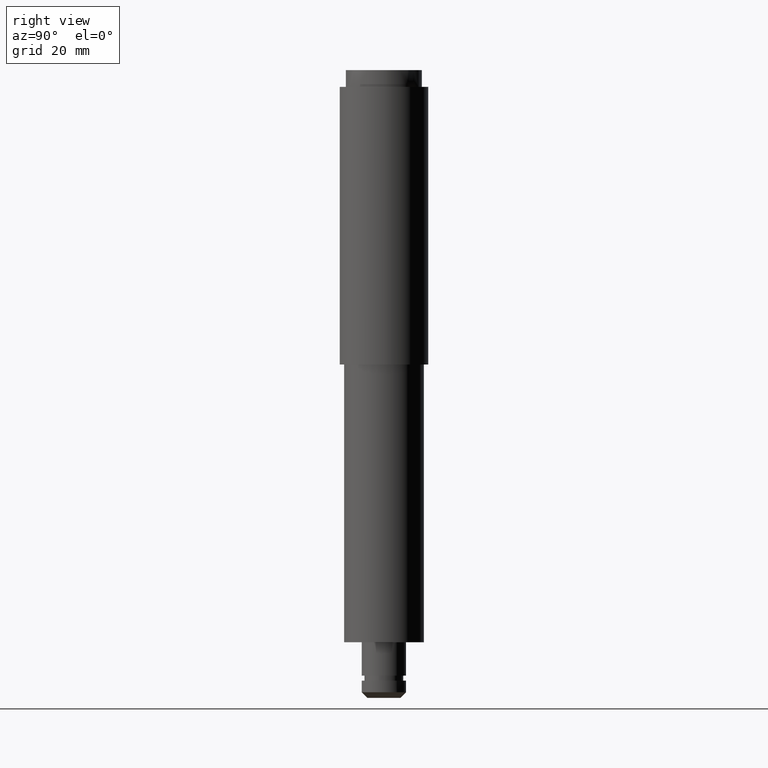
[diagram: clean part render]
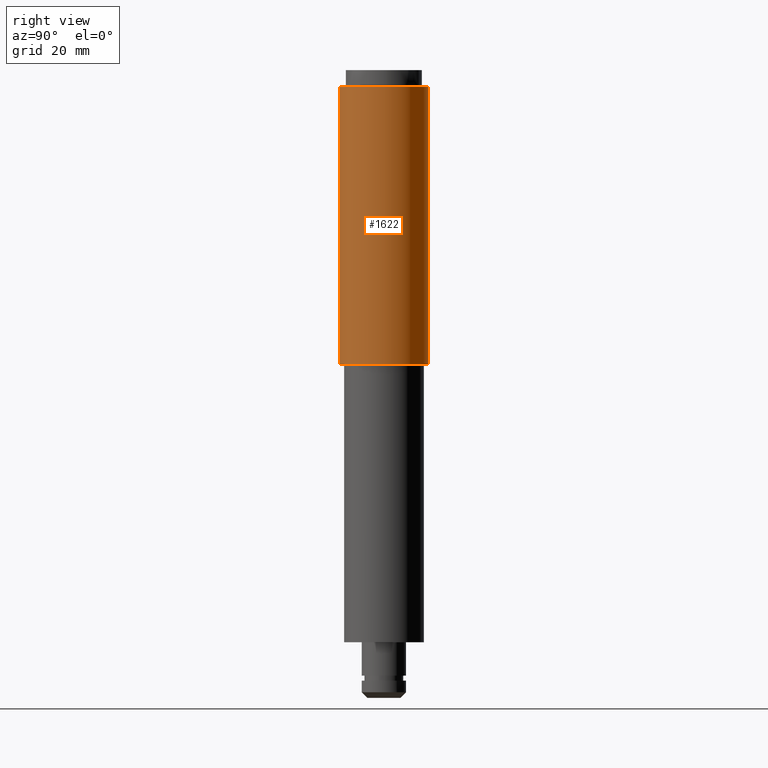
[diagram: same view with one face highlighted and labeled with its STEP entity id]
A machine part, right view. The second image highlights one B-rep face of the part: STEP entity #1622.
In plain terms, the highlighted face is a freeform B-spline surface patch.
Its self-contained STEP definition (entity closure, byte-faithful):
#1459=CARTESIAN_POINT('',(0.944273877348134,-7.944076210898157,60.0));
#1460=VERTEX_POINT('',#1459);
#1478=CARTESIAN_POINT('',(0.944273877348135,-7.944076210898157,110.0));
#1479=VERTEX_POINT('',#1478);
#1480=CARTESIAN_POINT('',(0.944273877348135,-7.944076210898157,110.0));
#1481=CARTESIAN_POINT('',(0.944273877348134,-7.944076210898157,60.0));
#1482=QUASI_UNIFORM_CURVE('',1,(#1480,#1481),.UNSPECIFIED.,.F.,.U.);
#1483=EDGE_CURVE('',#1479,#1460,#1482,.T.);
#1502=CARTESIAN_POINT('',(-0.488388316448705,7.985078387364543,110.0));
#1503=VERTEX_POINT('',#1502);
#1517=CARTESIAN_POINT('',(-0.488388316448705,7.985078387364543,60.0));
#1518=VERTEX_POINT('',#1517);
#1519=CARTESIAN_POINT('',(-0.488388316448705,7.985078387364543,110.0));
#1520=CARTESIAN_POINT('',(-0.488388316448705,7.985078387364543,60.0));
#1521=QUASI_UNIFORM_CURVE('',1,(#1519,#1520),.UNSPECIFIED.,.F.,.U.);
#1522=EDGE_CURVE('',#1503,#1518,#1521,.T.);
#1540=CARTESIAN_POINT('',(-0.488388316278799,7.985078387374934,111.250000000000000));
#1541=CARTESIAN_POINT('',(7.496690071096134,8.473466703653790,111.250000000000000));
#1542=CARTESIAN_POINT('',(7.985078387374990,0.488388316278856,111.250000000000000));
#1543=CARTESIAN_POINT('',(8.446289573860275,-7.052347926716008,111.250000000000000));
#1544=CARTESIAN_POINT('',(0.944273877254125,-7.944076210909330,111.250000000000060));
#1545=CARTESIAN_POINT('',(-0.488388316278799,7.985078387374934,58.718749999999993));
#1546=CARTESIAN_POINT('',(7.496690071096134,8.473466703653790,58.718750000000000));
#1547=CARTESIAN_POINT('',(7.985078387374990,0.488388316278856,58.718749999999993));
#1548=CARTESIAN_POINT('',(8.446289573860275,-7.052347926716008,58.718749999999993));
#1549=CARTESIAN_POINT('',(0.944273877254125,-7.944076210909330,58.718750000000000));
#1557=(BOUNDED_SURFACE()B_SPLINE_SURFACE(2,1,((#1540,#1545),(#1541,#1546),(#1542,#1547),(#1543,#1548),(#1544,#1549)),.UNSPECIFIED.,.F.,.F.,.U.)B_SPLINE_SURFACE_WITH_KNOTS((3,2,3),(2,2),(0.0,13.254833995939039,25.979474632040510),(0.0,52.531250000000028),.UNSPECIFIED.)GEOMETRIC_REPRESENTATION_ITEM()RATIONAL_B_SPLINE_SURFACE(((1.0,1.0),(0.707106781186548,0.707106781186548),(1.0,1.0),(0.718822509939086,0.718822509939086),(0.977505800795127,0.977505800795127)))REPRESENTATION_ITEM('')SURFACE());
#1558=CARTESIAN_POINT('',(8.000000000000057,0.0,60.0));
#1559=VERTEX_POINT('',#1558);
#1560=CARTESIAN_POINT('',(8.000000000000057,0.0,60.0));
#1561=CARTESIAN_POINT('',(8.000000000000057,-7.105396207441585,59.999999999999993));
#1562=CARTESIAN_POINT('',(0.944273877348134,-7.944076210898157,60.0));
#1570=(BOUNDED_CURVE()B_SPLINE_CURVE(2,(#1560,#1561,#1562),.UNSPECIFIED.,.F.,.U.)B_SPLINE_CURVE_WITH_KNOTS((3,3),(0.0,0.229562473511644),.UNSPECIFIED.)CURVE()GEOMETRIC_REPRESENTATION_ITEM()RATIONAL_B_SPLINE_CURVE((1.0,0.731050832857586,0.956026754180046))REPRESENTATION_ITEM(''));
#1571=EDGE_CURVE('',#1559,#1460,#1570,.T.);
#1572=ORIENTED_EDGE('',*,*,#1571,.F.);
#1573=CARTESIAN_POINT('',(-0.488388316448705,7.985078387364542,60.0));
#1574=CARTESIAN_POINT('',(-0.244422106559037,8.0,60.000000000000007));
#1575=CARTESIAN_POINT('',(5.684342E-014,8.0,60.0));
#1576=CARTESIAN_POINT('',(8.000000000000059,8.0,60.0));
#1577=CARTESIAN_POINT('',(8.000000000000057,0.0,60.0));
#1585=(BOUNDED_CURVE()B_SPLINE_CURVE(2,(#1573,#1574,#1575,#1576,#1577),.UNSPECIFIED.,.F.,.U.)B_SPLINE_CURVE_WITH_KNOTS((3,2,3),(0.739332962234625,0.750000000000000,1.0),.UNSPECIFIED.)CURVE()GEOMETRIC_REPRESENTATION_ITEM()RATIONAL_B_SPLINE_CURVE((0.976072041657465,0.987502787894779,1.0,0.707106781186548,1.0))REPRESENTATION_ITEM(''));
#1586=EDGE_CURVE('',#1518,#1559,#1585,.T.);
#1587=ORIENTED_EDGE('',*,*,#1586,.F.);
#1588=ORIENTED_EDGE('',*,*,#1522,.F.);
#1589=CARTESIAN_POINT('',(8.000000000000057,0.0,110.0));
#1590=VERTEX_POINT('',#1589);
#1591=CARTESIAN_POINT('',(-0.488388316448705,7.985078387364542,110.0));
#1592=CARTESIAN_POINT('',(-0.244422106559037,8.0,110.0));
#1593=CARTESIAN_POINT('',(5.684342E-014,8.0,110.0));
#1594=CARTESIAN_POINT('',(8.000000000000059,8.0,110.0));
#1595=CARTESIAN_POINT('',(8.000000000000057,0.0,110.0));
#1603=(BOUNDED_CURVE()B_SPLINE_CURVE(2,(#1591,#1592,#1593,#1594,#1595),.UNSPECIFIED.,.F.,.U.)B_SPLINE_CURVE_WITH_KNOTS((3,2,3),(0.739332962234625,0.750000000000000,1.0),.UNSPECIFIED.)CURVE()GEOMETRIC_REPRESENTATION_ITEM()RATIONAL_B_SPLINE_CURVE((0.976072041657465,0.987502787894779,1.0,0.707106781186548,1.0))REPRESENTATION_ITEM(''));
#1604=EDGE_CURVE('',#1503,#1590,#1603,.T.);
#1605=ORIENTED_EDGE('',*,*,#1604,.T.);
#1606=CARTESIAN_POINT('',(8.000000000000057,0.0,110.0));
#1607=CARTESIAN_POINT('',(8.000000000000055,-7.105396207441584,109.999999999999970));
#1608=CARTESIAN_POINT('',(0.944273877348135,-7.944076210898157,110.0));
#1616=(BOUNDED_CURVE()B_SPLINE_CURVE(2,(#1606,#1607,#1608),.UNSPECIFIED.,.F.,.U.)B_SPLINE_CURVE_WITH_KNOTS((3,3),(0.0,0.229562473511644),.UNSPECIFIED.)CURVE()GEOMETRIC_REPRESENTATION_ITEM()RATIONAL_B_SPLINE_CURVE((1.0,0.731050832857587,0.956026754180045))REPRESENTATION_ITEM(''));
#1617=EDGE_CURVE('',#1590,#1479,#1616,.T.);
#1618=ORIENTED_EDGE('',*,*,#1617,.T.);
#1619=ORIENTED_EDGE('',*,*,#1483,.T.);
#1620=EDGE_LOOP('',(#1572,#1587,#1588,#1605,#1618,#1619));
#1621=FACE_OUTER_BOUND('',#1620,.T.);
#1622=ADVANCED_FACE('',(#1621),#1557,.T.);